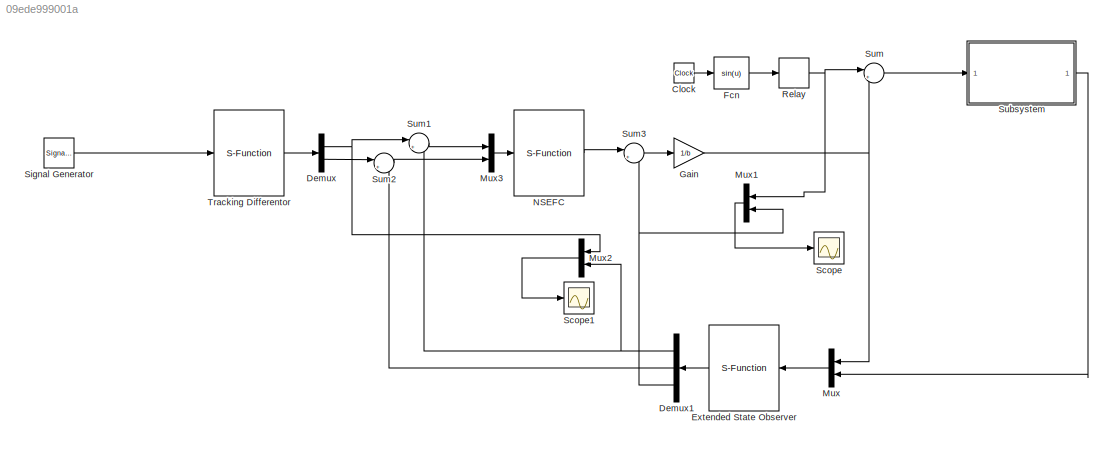
MODEL slx_09ede999001a
KIND model
CONFIG AbsTol = auto
CONFIG FixedStep = 0.01
CONFIG MaxStep = auto
CONFIG MinStep = auto
CONFIG RelTol = 1e-3
CONFIG SampleTimeConstraint = Unconstrained
CONFIG Solver = ode1
CONFIG SolverMode = Auto
CONFIG SolverName = ode1
CONFIG StartTime = 0.0
CONFIG StopTime = 100
WORKSPACE source: MATLAB code (in-file)
WORKSPACE code: r=10;T=0.01;h=0.1;bet=[1/h 1/(1.6*h^1.5) 1/(8.6*h^2.2)];d=h;b=1;aa=[0.75 1.25];bet1=[100 10];
BLOCK [Clock] Clock
BLOCK [Demux] Demux
  DisplayOption = bar
  Outputs = 2
  Ports = [1, 2]
BLOCK [Demux] Demux1
  DisplayOption = bar
  Outputs = 3
  Ports = [1, 3]
BLOCK [S-Function] Extended State Observer
  FunctionName = ESO
  Parameters = d,bet,b,T
  Ports = [1, 1]
BLOCK [Fcn] Fcn
  Expr = sin(u)
BLOCK [Gain] Gain
  Gain = 1/b
  OutDataTypeStr = Inherit: Inherit via internal rule
  ParamDataTypeStr = Inherit: Inherit via internal rule
  SaturateOnIntegerOverflow = off
BLOCK [Mux] Mux
  DisplayOption = bar
  Inputs = 2
  Ports = [2, 1]
BLOCK [Mux] Mux1
  DisplayOption = bar
  Inputs = 2
  Ports = [2, 1]
BLOCK [Mux] Mux2
  DisplayOption = bar
  Inputs = 2
  Ports = [2, 1]
BLOCK [Mux] Mux3
  DisplayOption = bar
  Inputs = 2
  Ports = [2, 1]
BLOCK [S-Function] NSEFC 
  FunctionName = NSEFC
  Parameters = aa,bet1,d
  Ports = [1, 1]
BLOCK [Relay] Relay
BLOCK [Scope] Scope
  Floating = off
  NumInputPorts = 1
  Ports = [1]
BLOCK [Scope] Scope1
  Floating = off
  NumInputPorts = 1
  Ports = [1]
  SaveName = ScopeData1
BLOCK [SignalGenerator] Signal Generator
  Frequency = 0.1
  Ports = [0, 1]
  WaveForm = square
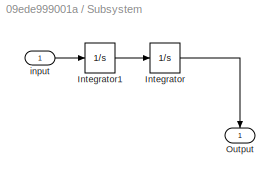
BLOCK [SubSystem] Subsystem
  Ports = [1, 1]
  RequestExecContextInheritance = off
BLOCK [Integrator] Subsystem/Integrator
  Ports = [1, 1]
BLOCK [Integrator] Subsystem/Integrator1
  Ports = [1, 1]
BLOCK [Outport] Subsystem/Output
  IconDisplay = Port number
BLOCK [Inport] Subsystem/input
  IconDisplay = Port number
BLOCK [Sum] Sum
  IconShape = round
  Inputs = |++
  Ports = [2, 1]
BLOCK [Sum] Sum1
  IconShape = round
  InputSameDT = off
  Inputs = |+-
  OutDataTypeStr = Inherit: Inherit via internal rule
  Ports = [2, 1]
  SaturateOnIntegerOverflow = off
BLOCK [Sum] Sum2
  IconShape = round
  InputSameDT = off
  Inputs = |+-
  OutDataTypeStr = Inherit: Inherit via internal rule
  Ports = [2, 1]
  SaturateOnIntegerOverflow = off
BLOCK [Sum] Sum3
  IconShape = round
  InputSameDT = off
  Inputs = |+-
  OutDataTypeStr = Inherit: Inherit via internal rule
  Ports = [2, 1]
  SaturateOnIntegerOverflow = off
BLOCK [S-Function] Tracking Differentor
  FunctionName = TD
  Parameters = r,h,T
  Ports = [1, 1]
LINE Clock:1 -> Fcn:1
NET Demux1:1 -> Mux2:2, Sum1:2
LINE Demux1:2 -> Sum2:2
NET Demux1:3 -> Mux1:2, Sum3:2
NET Demux:1 -> Mux2:1, Sum1:1
LINE Demux:2 -> Sum2:1
LINE Extended State Observer:1 -> Demux1:1
LINE Fcn:1 -> Relay:1
NET Gain:1 -> Mux:1, Sum:2
LINE Mux1:1 -> Scope:1
LINE Mux2:1 -> Scope1:1
LINE Mux3:1 -> NSEFC :1
LINE Mux:1 -> Extended State Observer:1
LINE NSEFC :1 -> Sum3:1
NET Relay:1 -> Mux1:1, Sum:1
LINE Signal Generator:1 -> Tracking Differentor:1
LINE Subsystem/Integrator1:1 -> Subsystem/Integrator:1
LINE Subsystem/Integrator:1 -> Subsystem/Output:1
LINE Subsystem/input:1 -> Subsystem/Integrator1:1
LINE Subsystem:1 -> Mux:2
LINE Sum1:1 -> Mux3:1
LINE Sum2:1 -> Mux3:2
LINE Sum3:1 -> Gain:1
LINE Sum:1 -> Subsystem:1
LINE Tracking Differentor:1 -> Demux:1
note: NET lines group one-source signal fan-out (src -> all destinations, sorted); 1:1 wires keep LINE
